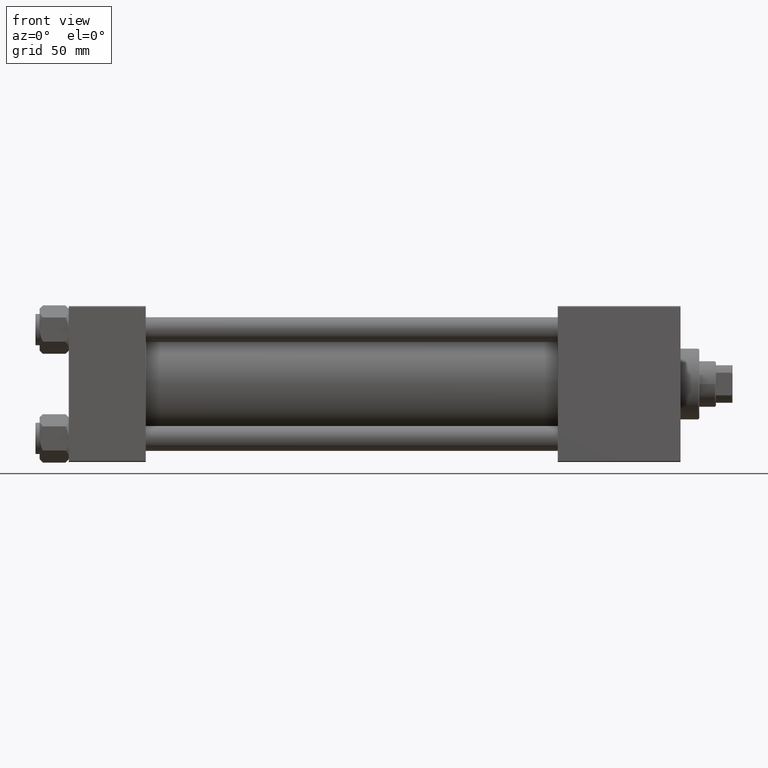
[diagram: clean part render]
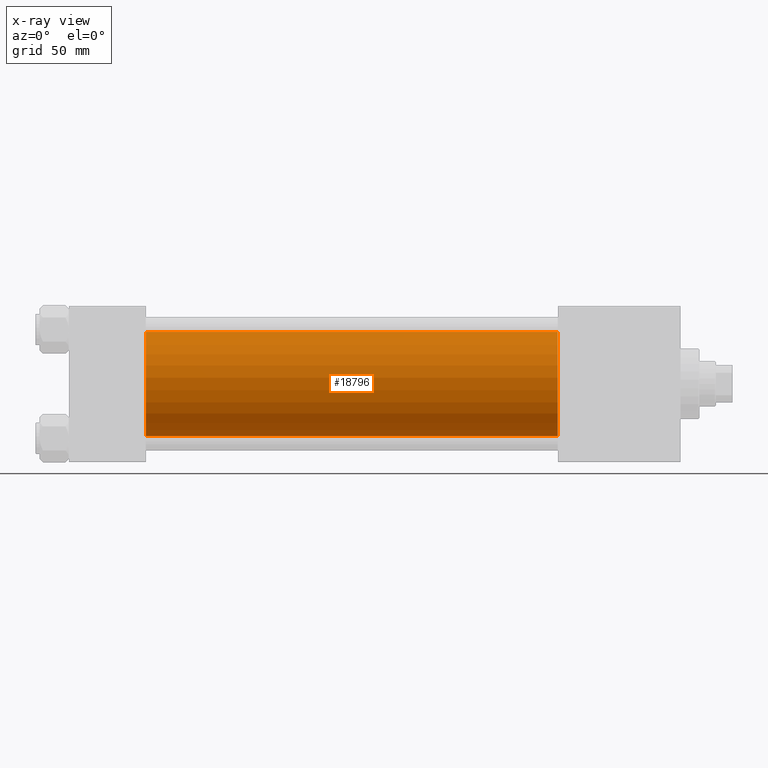
[diagram: x-ray — body ghosted, one internal face saturated and labeled with its STEP entity id]
A machine part, front view, then the same camera in x-ray: the body is ghosted and one INTERNAL B-rep face — a face not visible from any outside direction — is saturated and labeled: STEP entity #18796.
In plain terms, the highlighted cylindrical surface (partial cylindrical patch) has radius 25 mm, axis along (-1, -0, -0).
Its self-contained STEP definition (entity closure, byte-faithful):
#590 = DIRECTION ( 'NONE',  ( 1.000000000000000000, 0.000000000000000000, 0.000000000000000000 ) ) ;
#661 = CYLINDRICAL_SURFACE ( 'NONE', #2664, 25.00000000000000000 ) ;
#909 = DIRECTION ( 'NONE',  ( 0.000000000000000000, 0.000000000000000000, 1.000000000000000000 ) ) ;
#2088 = ORIENTED_EDGE ( 'NONE', *, *, #35688, .F. ) ;
#2664 = AXIS2_PLACEMENT_3D ( 'NONE', #39381, #35071, #909 ) ;
#3660 = VERTEX_POINT ( 'NONE', #39490 ) ;
#4540 = CARTESIAN_POINT ( 'NONE',  ( 235.0000000000000284, -2.602085213965210642E-15, 25.00000000000000000 ) ) ;
#4969 = VECTOR ( 'NONE', #37023, 1000.000000000000000 ) ;
#6806 = ORIENTED_EDGE ( 'NONE', *, *, #31853, .T. ) ;
#10133 = DIRECTION ( 'NONE',  ( -1.000000000000000000, -0.000000000000000000, -0.000000000000000000 ) ) ;
#11895 = DIRECTION ( 'NONE',  ( 1.000000000000000000, 0.000000000000000000, 0.000000000000000000 ) ) ;
#11964 = EDGE_CURVE ( 'NONE', #28903, #3660, #48711, .T. ) ;
#15666 = EDGE_LOOP ( 'NONE', ( #6806, #35295, #2088, #40327 ) ) ;
#17323 = CIRCLE ( 'NONE', #18943, 25.00000000000000000 ) ;
#18546 = VERTEX_POINT ( 'NONE', #4540 ) ;
#18796 = ADVANCED_FACE ( 'NONE', ( #38882 ), #661, .F. ) ;
#18943 = AXIS2_PLACEMENT_3D ( 'NONE', #46273, #11895, #31748 ) ;
#28903 = VERTEX_POINT ( 'NONE', #43509 ) ;
#31428 = DIRECTION ( 'NONE',  ( 0.000000000000000000, 0.000000000000000000, -1.000000000000000000 ) ) ;
#31748 = DIRECTION ( 'NONE',  ( 0.000000000000000000, 0.000000000000000000, -1.000000000000000000 ) ) ;
#31853 = EDGE_CURVE ( 'NONE', #18546, #28903, #17323, .T. ) ;
#33929 = VECTOR ( 'NONE', #10133, 1000.000000000000000 ) ;
#35071 = DIRECTION ( 'NONE',  ( -1.000000000000000000, -0.000000000000000000, -0.000000000000000000 ) ) ;
#35152 = CARTESIAN_POINT ( 'NONE',  ( 235.0000000000000284, -2.602085213965210642E-15, 25.00000000000000000 ) ) ;
#35295 = ORIENTED_EDGE ( 'NONE', *, *, #11964, .T. ) ;
#35688 = EDGE_CURVE ( 'NONE', #43830, #3660, #42613, .T. ) ;
#36719 = CARTESIAN_POINT ( 'NONE',  ( 37.00000000000000000, -2.602085213965210642E-15, 25.00000000000000000 ) ) ;
#37023 = DIRECTION ( 'NONE',  ( -1.000000000000000000, -0.000000000000000000, -0.000000000000000000 ) ) ;
#38882 = FACE_OUTER_BOUND ( 'NONE', #15666, .T. ) ;
#39381 = CARTESIAN_POINT ( 'NONE',  ( 235.0000000000000284, -2.602085213965210642E-15, 0.000000000000000000 ) ) ;
#39490 = CARTESIAN_POINT ( 'NONE',  ( 37.00000000000000000, 4.595317839031724996E-16, -25.00000000000000000 ) ) ;
#40178 = AXIS2_PLACEMENT_3D ( 'NONE', #43376, #590, #31428 ) ;
#40327 = ORIENTED_EDGE ( 'NONE', *, *, #45955, .F. ) ;
#42534 = LINE ( 'NONE', #35152, #33929 ) ;
#42613 = CIRCLE ( 'NONE', #40178, 25.00000000000000000 ) ;
#43376 = CARTESIAN_POINT ( 'NONE',  ( 37.00000000000000000, -2.602085213965210642E-15, 0.000000000000000000 ) ) ;
#43509 = CARTESIAN_POINT ( 'NONE',  ( 235.0000000000000284, 4.595317839031724996E-16, -25.00000000000000000 ) ) ;
#43830 = VERTEX_POINT ( 'NONE', #36719 ) ;
#45955 = EDGE_CURVE ( 'NONE', #18546, #43830, #42534, .T. ) ;
#46273 = CARTESIAN_POINT ( 'NONE',  ( 235.0000000000000284, -2.602085213965210642E-15, 0.000000000000000000 ) ) ;
#48711 = LINE ( 'NONE', #49460, #4969 ) ;
#49460 = CARTESIAN_POINT ( 'NONE',  ( 235.0000000000000284, 4.595317839031724996E-16, -25.00000000000000000 ) ) ;